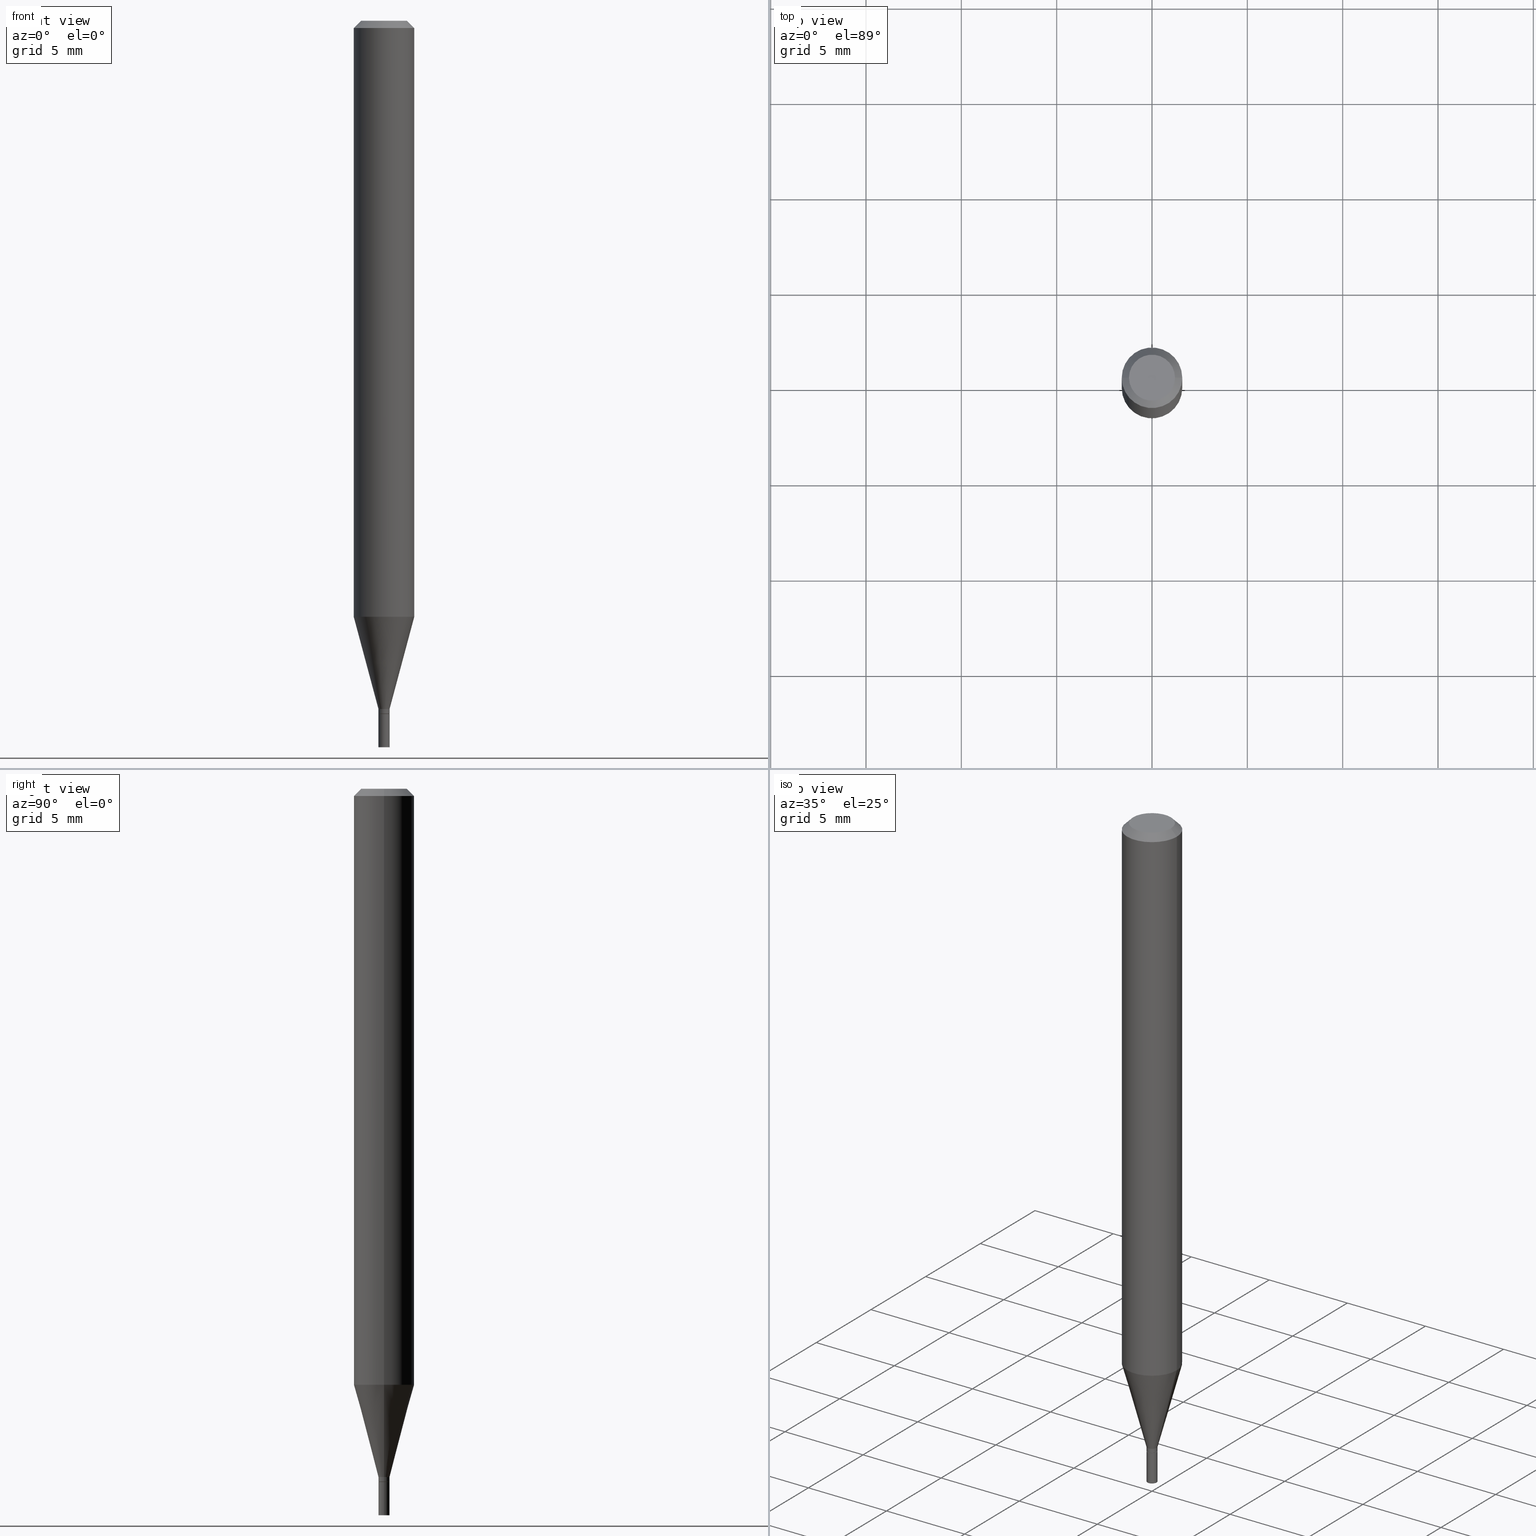
[diagram: canonical four-view strip — front | top / right | iso, engineering-drawing reading convention]
A machine part, canonical four-view strip (front | top / right | iso — engineering-drawing reading convention). The complete STEP part file that produces these views, byte-faithful:
ISO-10303-21;
HEADER;
FILE_DESCRIPTION (( 'STEP AP203' ),
    '1' );
FILE_NAME ('02293.STEP',
    '2024-03-18T20:02:10',
    ( '' ),
    ( '' ),
    'SwSTEP 2.0',
    'SolidWorks 2023',
    '' );
FILE_SCHEMA (( 'CONFIG_CONTROL_DESIGN' ));
ENDSEC;

DATA;
#1 = AXIS2_PLACEMENT_3D ( 'NONE', #349, #158, #167 ) ;
#2 = DIRECTION ( 'NONE',  ( 1.000000000000000000, -6.982962677686244622E-15, 0.000000000000000000 ) ) ;
#3 = CARTESIAN_POINT ( 'NONE',  ( 3.009553868105685827E-29, -4.296845309233809826E-15, -1.230665408813987893 ) ) ;
#4 = VECTOR ( 'NONE', #362, 39.37007874015748143 ) ;
#5 = EDGE_LOOP ( 'NONE', ( #283, #289, #29, #328 ) ) ;
#6 = CARTESIAN_POINT ( 'NONE',  ( 3.499465861650930802E-29, -4.996309795884541218E-15, -1.431000000000000050 ) ) ;
#7 = ORIENTED_EDGE ( 'NONE', *, *, #429, .T. ) ;
#8 = LINE ( 'NONE', #223, #38 ) ;
#9 = DIRECTION ( 'NONE',  ( -2.445468806185136597E-29, 3.491481338843145583E-15, 1.000000000000000000 ) ) ;
#10 = DIRECTION ( 'NONE',  ( 1.000000000000000000, -6.982962677686267499E-15, 4.876176775795935793E-29 ) ) ;
#11 = DIRECTION ( 'NONE',  ( 1.000000000000000000, -6.982962677686254878E-15, 0.000000000000000000 ) ) ;
#12 = AXIS2_PLACEMENT_3D ( 'NONE', #454, #91, #276 ) ;
#13 = SECURITY_CLASSIFICATION ( '', '', #46 ) ;
#14 = APPROVAL_PERSON_ORGANIZATION ( #168, #409, #60 ) ;
#15 = PERSON_AND_ORGANIZATION ( #261, #173 ) ;
#16 = EDGE_CURVE ( 'NONE', #421, #183, #329, .T. ) ;
#17 = DIRECTION ( 'NONE',  ( -2.445468806185136597E-29, 3.491481338843145583E-15, 1.000000000000000000 ) ) ;
#18 = COORDINATED_UNIVERSAL_TIME_OFFSET ( 5, 0, .BEHIND. ) ;
#19 = DIRECTION ( 'NONE',  ( 2.445468806185136597E-29, -3.491481338843145583E-15, -1.000000000000000000 ) ) ;
#20 =( GEOMETRIC_REPRESENTATION_CONTEXT ( 3 ) GLOBAL_UNCERTAINTY_ASSIGNED_CONTEXT ( ( #49 ) ) GLOBAL_UNIT_ASSIGNED_CONTEXT ( ( #311, #315, #26 ) ) REPRESENTATION_CONTEXT ( 'NONE', 'WORKASPACE' ) );
#21 = COORDINATED_UNIVERSAL_TIME_OFFSET ( 5, 0, .BEHIND. ) ;
#22 = CALENDAR_DATE ( 2024, 18, 3 ) ;
#23 = CARTESIAN_POINT ( 'NONE',  ( 3.668203209277705088E-31, -5.237222008264718399E-17, -0.01499999999999999944 ) ) ;
#24 = LENGTH_MEASURE_WITH_UNIT ( LENGTH_MEASURE( 0.02539999999999999897 ), #161 );
#25 = DIRECTION ( 'NONE',  ( 1.000000000000000000, -6.982962677686244622E-15, 0.000000000000000000 ) ) ;
#26 =( NAMED_UNIT ( * ) SI_UNIT ( $, .STERADIAN. ) SOLID_ANGLE_UNIT ( ) );
#27 = CIRCLE ( 'NONE', #157, 0.01149999999999992001 ) ;
#28 = APPLICATION_PROTOCOL_DEFINITION ( 'international standard', 'config_control_design', 1994, #427 ) ;
#29 = ORIENTED_EDGE ( 'NONE', *, *, #78, .F. ) ;
#30 = CARTESIAN_POINT ( 'NONE',  ( 3.668203209277705088E-31, -5.237222008264718399E-17, -0.01499999999999999944 ) ) ;
#31 = DIRECTION ( 'NONE',  ( -2.445468806185136597E-29, 3.491481338843145583E-15, 1.000000000000000000 ) ) ;
#32 = DIRECTION ( 'NONE',  ( 1.000000000000000000, -6.982962677686265922E-15, 4.876176775795935793E-29 ) ) ;
#33 = LOCAL_TIME ( 16, 2, 10.00000000000000000, #93 ) ;
#34 = EDGE_LOOP ( 'NONE', ( #7, #297, #280, #300 ) ) ;
#35 = CARTESIAN_POINT ( 'NONE',  ( -0.01149999999999992001, -4.366219333633723973E-15, -1.421000000000000263 ) ) ;
#36 = CARTESIAN_POINT ( 'NONE',  ( 0.01149999999999999981, -5.317526079058111285E-15, -1.500000000000000222 ) ) ;
#37 = ORIENTED_EDGE ( 'NONE', *, *, #121, .T. ) ;
#38 = VECTOR ( 'NONE', #81, 39.37007874015748143 ) ;
#39 = CIRCLE ( 'NONE', #425, 0.04749999999999999362 ) ;
#40 = ORIENTED_EDGE ( 'NONE', *, *, #101, .T. ) ;
#41 = EDGE_CURVE ( 'NONE', #355, #109, #116, .T. ) ;
#42 = CARTESIAN_POINT ( 'NONE',  ( -0.01149999999999999981, -5.035053487462219287E-15, -1.500000000000000222 ) ) ;
#43 = ORIENTED_EDGE ( 'NONE', *, *, #232, .F. ) ;
#44 = CONICAL_SURFACE ( 'NONE', #201, 0.01149999999999992001, 0.2617993877991502960 ) ;
#45 = ORIENTED_EDGE ( 'NONE', *, *, #156, .F. ) ;
#46 = SECURITY_CLASSIFICATION_LEVEL ( 'unclassified' ) ;
#47 = EDGE_CURVE ( 'NONE', #65, #253, #8, .T. ) ;
#48 = CARTESIAN_POINT ( 'NONE',  ( 0.000000000000000000, 0.000000000000000000, 0.000000000000000000 ) ) ;
#49 = UNCERTAINTY_MEASURE_WITH_UNIT (LENGTH_MEASURE( 1.000000000000000082E-05 ), #311, 'distance_accuracy_value', 'NONE');
#50 = CARTESIAN_POINT ( 'NONE',  ( 3.499465861650930802E-29, -4.996309795884541218E-15, -1.431000000000000050 ) ) ;
#51 = PERSON_AND_ORGANIZATION ( #261, #173 ) ;
#52 = PERSON_AND_ORGANIZATION ( #261, #173 ) ;
#53 = AXIS2_PLACEMENT_3D ( 'NONE', #308, #448, #119 ) ;
#54 = DIRECTION ( 'NONE',  ( -0.2588190451025216277, 5.211531920934551831E-15, 0.9659258262890679791 ) ) ;
#55 = APPLICATION_CONTEXT ( 'configuration controlled 3d designs of mechanical parts and assemblies' ) ;
#56 = DIRECTION ( 'NONE',  ( 1.000000000000000000, -6.982962677686252511E-15, 0.000000000000000000 ) ) ;
#57 = DIRECTION ( 'NONE',  ( -2.445468806185136597E-29, 3.491481338843145583E-15, 1.000000000000000000 ) ) ;
#58 = DATE_AND_TIME ( #318, #33 ) ;
#59 = DIRECTION ( 'NONE',  ( -2.445468806185136597E-29, 3.491481338843145583E-15, 1.000000000000000000 ) ) ;
#60 = APPROVAL_ROLE ( '' ) ;
#61 = EDGE_LOOP ( 'NONE', ( #288, #240 ) ) ;
#62 = AXIS2_PLACEMENT_3D ( 'NONE', #153, #9, #164 ) ;
#63 = DIRECTION ( 'NONE',  ( 1.000000000000000000, -6.982962677686267499E-15, 4.852736867747366768E-29 ) ) ;
#64 = DIRECTION ( 'NONE',  ( -2.445468806185136597E-29, 3.491481338843145583E-15, 1.000000000000000000 ) ) ;
#65 = VERTEX_POINT ( 'NONE', #371 ) ;
#66 = AXIS2_PLACEMENT_3D ( 'NONE', #23, #162, #310 ) ;
#67 = LOCAL_TIME ( 16, 2, 10.00000000000000000, #18 ) ;
#68 = CARTESIAN_POINT ( 'NONE',  ( 0.04749999999999999362, -4.035134999187572707E-16, 2.926320210456084224E-16 ) ) ;
#69 = DIRECTION ( 'NONE',  ( 1.000000000000000000, -6.982962677686266711E-15, 4.876176775795935793E-29 ) ) ;
#70 = FACE_OUTER_BOUND ( 'NONE', #262, .T. ) ;
#71 = CARTESIAN_POINT ( 'NONE',  ( -7.156224791579416592E-45, 1.021719240628687565E-30, 2.926320210456058586E-16 ) ) ;
#72 = CARTESIAN_POINT ( 'NONE',  ( 0.06249999999999997918, -4.733280476589200707E-15, -1.230665408813987893 ) ) ;
#73 = CARTESIAN_POINT ( 'NONE',  ( 0.01149999999999999981, -8.030407079339207309E-17, 5.607603292165326057E-31 ) ) ;
#74 = CIRCLE ( 'NONE', #1, 0.01149999999999999981 ) ;
#75 = CYLINDRICAL_SURFACE ( 'NONE', #301, 0.01149999999999999981 ) ;
#76 = AXIS2_PLACEMENT_3D ( 'NONE', #6, #147, #2 ) ;
#77 = ORIENTED_EDGE ( 'NONE', *, *, #435, .T. ) ;
#78 = EDGE_CURVE ( 'NONE', #253, #317, #281, .T. ) ;
#79 = CARTESIAN_POINT ( 'NONE',  ( -0.06250000000000000000, 3.840629472727444916E-16, -0.01499999999999999944 ) ) ;
#80 = PERSON_AND_ORGANIZATION_ROLE ( 'classification_officer' ) ;
#81 = DIRECTION ( 'NONE',  ( 0.2588190451025216277, 1.565188264969619995E-15, 0.9659258262890679791 ) ) ;
#82 = EDGE_CURVE ( 'NONE', #317, #109, #379, .T. ) ;
#83 = AXIS2_PLACEMENT_3D ( 'NONE', #216, #133, #69 ) ;
#84 = CARTESIAN_POINT ( 'NONE',  ( 0.01149999999999992174, -8.030407079339151842E-17, 5.607603292165287521E-31 ) ) ;
#85 = CARTESIAN_POINT ( 'NONE',  ( 0.01100000000000000110, -5.073122385339090530E-15, -1.431000000000000050 ) ) ;
#86 = PERSON_AND_ORGANIZATION ( #261, #173 ) ;
#87 = LINE ( 'NONE', #84, #444 ) ;
#88 = EDGE_CURVE ( 'NONE', #319, #222, #459, .T. ) ;
#89 = LINE ( 'NONE', #235, #105 ) ;
#90 = EDGE_CURVE ( 'NONE', #225, #421, #247, .T. ) ;
#91 = DIRECTION ( 'NONE',  ( -2.445468806185136597E-29, 3.491481338843145583E-15, 1.000000000000000000 ) ) ;
#92 = AXIS2_PLACEMENT_3D ( 'NONE', #71, #332, #384 ) ;
#93 = COORDINATED_UNIVERSAL_TIME_OFFSET ( 5, 0, .BEHIND. ) ;
#94 = EDGE_LOOP ( 'NONE', ( #391, #131 ) ) ;
#95 = DIRECTION ( 'NONE',  ( 2.438088387897960049E-29, -3.491481338843145188E-15, -1.000000000000000000 ) ) ;
#96 = DATE_AND_TIME ( #279, #210 ) ;
#97 = EDGE_CURVE ( 'NONE', #434, #207, #416, .T. ) ;
#98 = ORIENTED_EDGE ( 'NONE', *, *, #101, .F. ) ;
#99 = AXIS2_PLACEMENT_3D ( 'NONE', #227, #19, #457 ) ;
#100 = ORIENTED_EDGE ( 'NONE', *, *, #461, .F. ) ;
#101 = EDGE_CURVE ( 'NONE', #253, #363, #414, .T. ) ;
#102 = CC_DESIGN_PERSON_AND_ORGANIZATION_ASSIGNMENT ( #52, #193, ( #185 ) ) ;
#103 = DIRECTION ( 'NONE',  ( -2.445468806185136597E-29, 3.491481338843145583E-15, 1.000000000000000000 ) ) ;
#104 = CIRCLE ( 'NONE', #53, 0.01100000000000000110 ) ;
#105 = VECTOR ( 'NONE', #54, 39.37007874015748143 ) ;
#106 = PLANE ( 'NONE',  #113 ) ;
#107 = DIRECTION ( 'NONE',  ( 0.7071067811865405783, -7.319954787623230802E-15, -0.7071067811865542341 ) ) ;
#108 = CARTESIAN_POINT ( 'NONE',  ( -0.01149999999999999981, -5.035053487462219287E-15, -1.431000000000000050 ) ) ;
#109 = VERTEX_POINT ( 'NONE', #419 ) ;
#110 = EDGE_CURVE ( 'NONE', #109, #363, #314, .T. ) ;
#111 = EDGE_LOOP ( 'NONE', ( #77, #282, #458, #200 ) ) ;
#112 = CIRCLE ( 'NONE', #401, 0.01149999999999992348 ) ;
#113 = AXIS2_PLACEMENT_3D ( 'NONE', #291, #438, #375 ) ;
#114 = APPROVAL_DATE_TIME ( #96, #409 ) ;
#115 = CC_DESIGN_PERSON_AND_ORGANIZATION_ASSIGNMENT ( #273, #126, ( #170 ) ) ;
#116 = LINE ( 'NONE', #79, #424 ) ;
#117 = AXIS2_PLACEMENT_3D ( 'NONE', #187, #336, #378 ) ;
#118 = CIRCLE ( 'NONE', #344, 0.06250000000000000000 ) ;
#119 = DIRECTION ( 'NONE',  ( 1.000000000000000000, -6.982962677686244622E-15, 0.000000000000000000 ) ) ;
#120 = EDGE_CURVE ( 'NONE', #249, #183, #410, .T. ) ;
#121 = EDGE_CURVE ( 'NONE', #183, #249, #74, .T. ) ;
#122 = CARTESIAN_POINT ( 'NONE',  ( 3.499465861650930802E-29, -4.996309795884541218E-15, -1.431000000000000050 ) ) ;
#123 = CARTESIAN_POINT ( 'NONE',  ( 3.316907271900976096E-16, 0.04749999999999999362, -1.952935307224647024E-17 ) ) ;
#124 = CIRCLE ( 'NONE', #392, 0.01149999999999992001 ) ;
#125 = DIRECTION ( 'NONE',  ( -1.000000000000000000, 6.982962677686265922E-15, -4.876176775795935793E-29 ) ) ;
#126 = PERSON_AND_ORGANIZATION_ROLE ( 'design_owner' ) ;
#127 = ORIENTED_EDGE ( 'NONE', *, *, #47, .T. ) ;
#128 = CARTESIAN_POINT ( 'NONE',  ( 0.06250000000000000000, -4.364351673553916694E-16, 3.047610484872459871E-30 ) ) ;
#129 = COORDINATED_UNIVERSAL_TIME_OFFSET ( 5, 0, .BEHIND. ) ;
#130 = VECTOR ( 'NONE', #415, 39.37007874015748143 ) ;
#131 = ORIENTED_EDGE ( 'NONE', *, *, #143, .F. ) ;
#132 = AXIS2_PLACEMENT_3D ( 'NONE', #260, #254, #268 ) ;
#133 = DIRECTION ( 'NONE',  ( -2.445468806185136597E-29, 3.491481338843145583E-15, 1.000000000000000000 ) ) ;
#134 = CARTESIAN_POINT ( 'NONE',  ( 8.030407079342705414E-17, 0.01149999999999500380, -1.431000000000000050 ) ) ;
#135 = LINE ( 'NONE', #208, #4 ) ;
#136 = PLANE ( 'NONE',  #264 ) ;
#137 = FACE_OUTER_BOUND ( 'NONE', #94, .T. ) ;
#138 = DIRECTION ( 'NONE',  ( -1.000000000000000000, 6.982962677686265922E-15, -4.876176775795935793E-29 ) ) ;
#139 = ORIENTED_EDGE ( 'NONE', *, *, #110, .F. ) ;
#140 = VECTOR ( 'NONE', #313, 39.37007874015748143 ) ;
#141 = CARTESIAN_POINT ( 'NONE',  ( -0.06249999999999997918, -3.852756099383747210E-15, -1.230665408813987893 ) ) ;
#142 = CONICAL_SURFACE ( 'NONE', #244, 0.01149999999999992001, 0.2617993877991502960 ) ;
#143 = EDGE_CURVE ( 'NONE', #215, #434, #104, .T. ) ;
#144 = ORIENTED_EDGE ( 'NONE', *, *, #398, .F. ) ;
#145 = EDGE_CURVE ( 'NONE', #225, #249, #348, .T. ) ;
#146 = DIRECTION ( 'NONE',  ( -2.445468806185136597E-29, 3.491481338843145583E-15, 1.000000000000000000 ) ) ;
#147 = DIRECTION ( 'NONE',  ( -2.445468806185136597E-29, 3.491481338843145583E-15, 1.000000000000000000 ) ) ;
#148 = ORIENTED_EDGE ( 'NONE', *, *, #398, .T. ) ;
#149 = CARTESIAN_POINT ( 'NONE',  ( 0.06250000000000000000, -4.888073874380388472E-16, -0.01499999999999999944 ) ) ;
#150 = FACE_OUTER_BOUND ( 'NONE', #418, .T. ) ;
#151 = LOCAL_TIME ( 16, 2, 10.00000000000000000, #343 ) ;
#152 = EDGE_CURVE ( 'NONE', #207, #65, #87, .T. ) ;
#153 = CARTESIAN_POINT ( 'NONE',  ( 3.498243127247838561E-29, -4.994564055215120503E-15, -1.430500000000000327 ) ) ;
#154 = DATE_TIME_ROLE ( 'classification_date' ) ;
#155 = FACE_OUTER_BOUND ( 'NONE', #397, .T. ) ;
#156 = EDGE_CURVE ( 'NONE', #319, #207, #112, .T. ) ;
#157 = AXIS2_PLACEMENT_3D ( 'NONE', #430, #389, #290 ) ;
#158 = DIRECTION ( 'NONE',  ( -2.445468806185136597E-29, 3.491481338843145583E-15, 1.000000000000000000 ) ) ;
#159 = ADVANCED_FACE ( 'NONE', ( #195 ), #346, .T. ) ;
#160 = DIRECTION ( 'NONE',  ( 1.000000000000000000, -6.982962677686266711E-15, 4.876176775795935793E-29 ) ) ;
#161 =( LENGTH_UNIT ( ) NAMED_UNIT ( * ) SI_UNIT ( $, .METRE. ) );
#162 = DIRECTION ( 'NONE',  ( 2.445468806185136597E-29, -3.491481338843145583E-15, -1.000000000000000000 ) ) ;
#163 = ORIENTED_EDGE ( 'NONE', *, *, #152, .T. ) ;
#164 = DIRECTION ( 'NONE',  ( 1.000000000000000000, -6.982962677686252511E-15, 0.000000000000000000 ) ) ;
#165 = CIRCLE ( 'NONE', #180, 0.06250000000000000000 ) ;
#166 = CC_DESIGN_APPROVAL ( #169, ( #13 ) ) ;
#167 = DIRECTION ( 'NONE',  ( 1.000000000000000000, -6.982962677686291165E-15, 0.000000000000000000 ) ) ;
#168 = PERSON_AND_ORGANIZATION ( #261, #173 ) ;
#169 = APPROVAL ( #228, 'UNSPECIFIED' ) ;
#170 = PRODUCT ( '02293', '02293', '', ( #456 ) ) ;
#171 = ORIENTED_EDGE ( 'NONE', *, *, #82, .T. ) ;
#172 = ORIENTED_EDGE ( 'NONE', *, *, #156, .T. ) ;
#173 = ORGANIZATION ( 'UNSPECIFIED', 'UNSPECIFIED', '' ) ;
#174 = ORIENTED_EDGE ( 'NONE', *, *, #466, .T. ) ;
#175 = ORIENTED_EDGE ( 'NONE', *, *, #232, .T. ) ;
#176 = DIRECTION ( 'NONE',  ( 1.000000000000000000, -6.982962677686266711E-15, 0.000000000000000000 ) ) ;
#177 = CLOSED_SHELL ( 'NONE', ( #239, #359, #366, #230 ) ) ;
#178 = CARTESIAN_POINT ( 'NONE',  ( -0.01100000000000000110, -4.915500867776819716E-15, -1.431000000000000050 ) ) ;
#179 = ADVANCED_FACE ( 'NONE', ( #340 ), #272, .T. ) ;
#180 = AXIS2_PLACEMENT_3D ( 'NONE', #3, #146, #213 ) ;
#181 = CARTESIAN_POINT ( 'NONE',  ( 0.06250000000000000000, -4.811533449433679005E-16, -0.01499999999999999944 ) ) ;
#182 = CIRCLE ( 'NONE', #447, 0.01149999999999999981 ) ;
#183 = VERTEX_POINT ( 'NONE', #450 ) ;
#184 = PLANE ( 'NONE',  #452 ) ;
#185 = PRODUCT_DEFINITION ( 'UNKNOWN', '', #211, #295 ) ;
#186 = VECTOR ( 'NONE', #334, 39.37007874015748143 ) ;
#187 = CARTESIAN_POINT ( 'NONE',  ( 3.009553868105685827E-29, -4.296845309233809826E-15, -1.230665408813987893 ) ) ;
#188 = APPROVAL_PERSON_ORGANIZATION ( #407, #169, #226 ) ;
#189 = DIMENSIONAL_EXPONENTS ( 1.000000000000000000, 0.000000000000000000, 0.000000000000000000, 0.000000000000000000, 0.000000000000000000, 0.000000000000000000, 0.000000000000000000 ) ;
#190 = DIRECTION ( 'NONE',  ( 1.000000000000000000, -6.982962677686266711E-15, 4.876176775795935232E-29 ) ) ;
#191 = ADVANCED_FACE ( 'NONE', ( #155 ), #327, .T. ) ;
#192 = CLOSED_SHELL ( 'NONE', ( #258, #400, #451, #383, #245, #238, #304, #179, #372, #445, #191, #159 ) ) ;
#193 = PERSON_AND_ORGANIZATION_ROLE ( 'creator' ) ;
#194 = CARTESIAN_POINT ( 'NONE',  ( -7.156224791579416592E-45, 1.021719240628687565E-30, 2.926320210456058586E-16 ) ) ;
#195 = FACE_OUTER_BOUND ( 'NONE', #197, .T. ) ;
#196 = APPROVAL_DATE_TIME ( #58, #345 ) ;
#197 = EDGE_LOOP ( 'NONE', ( #243, #172, #163, #144 ) ) ;
#198 = DIRECTION ( 'NONE',  ( 1.000000000000000000, -6.982962677686291165E-15, 0.000000000000000000 ) ) ;
#199 = AXIS2_PLACEMENT_3D ( 'NONE', #50, #59, #198 ) ;
#200 = ORIENTED_EDGE ( 'NONE', *, *, #16, .F. ) ;
#201 = AXIS2_PLACEMENT_3D ( 'NONE', #292, #440, #11 ) ;
#202 = FACE_OUTER_BOUND ( 'NONE', #34, .T. ) ;
#203 = ORIENTED_EDGE ( 'NONE', *, *, #88, .T. ) ;
#204 = ORIENTED_EDGE ( 'NONE', *, *, #298, .F. ) ;
#205 = CARTESIAN_POINT ( 'NONE',  ( -0.01149999999999992348, -4.912851640602709304E-15, -1.430500000000000327 ) ) ;
#206 = EDGE_CURVE ( 'NONE', #65, #222, #124, .T. ) ;
#207 = VERTEX_POINT ( 'NONE', #396 ) ;
#208 = CARTESIAN_POINT ( 'NONE',  ( -0.01100000000000000110, -4.918150094950930917E-15, -1.431000000000000050 ) ) ;
#209 = DIRECTION ( 'NONE',  ( -2.445468806185136597E-29, 3.491481338843145583E-15, 1.000000000000000000 ) ) ;
#210 = LOCAL_TIME ( 16, 2, 10.00000000000000000, #129 ) ;
#211 = PRODUCT_DEFINITION_FORMATION_WITH_SPECIFIED_SOURCE ( 'ANY', '', #170, .NOT_KNOWN. ) ;
#212 = DIRECTION ( 'NONE',  ( 1.000000000000000000, -6.982962677686244622E-15, 0.000000000000000000 ) ) ;
#213 = DIRECTION ( 'NONE',  ( 1.000000000000000000, -6.982962677686262766E-15, 0.000000000000000000 ) ) ;
#214 = ORIENTED_EDGE ( 'NONE', *, *, #206, .F. ) ;
#215 = VERTEX_POINT ( 'NONE', #178 ) ;
#216 = CARTESIAN_POINT ( 'NONE',  ( 0.000000000000000000, 0.000000000000000000, 0.000000000000000000 ) ) ;
#217 = FACE_OUTER_BOUND ( 'NONE', #277, .T. ) ;
#218 = ORIENTED_EDGE ( 'NONE', *, *, #120, .T. ) ;
#219 = DIRECTION ( 'NONE',  ( -0.7071067811865405783, 2.468850131082184880E-15, -0.7071067811865542341 ) ) ;
#220 = CARTESIAN_POINT ( 'NONE',  ( 0.000000000000000000, 0.000000000000000000, 0.000000000000000000 ) ) ;
#221 = DIRECTION ( 'NONE',  ( 1.000000000000000000, -6.982962677686254878E-15, 0.000000000000000000 ) ) ;
#222 = VERTEX_POINT ( 'NONE', #35 ) ;
#223 = CARTESIAN_POINT ( 'NONE',  ( 0.01149999999999992001, -5.041699053289501888E-15, -1.421000000000000263 ) ) ;
#224 = ORIENTED_EDGE ( 'NONE', *, *, #82, .F. ) ;
#225 = VERTEX_POINT ( 'NONE', #42 ) ;
#226 = APPROVAL_ROLE ( '' ) ;
#227 = CARTESIAN_POINT ( 'NONE',  ( 3.668203209277705088E-31, -5.237222008264718399E-17, -0.01499999999999999944 ) ) ;
#228 = APPROVAL_STATUS ( 'not_yet_approved' ) ;
#229 = DIRECTION ( 'NONE',  ( -2.445468806185136877E-29, 3.491481338843145188E-15, 1.000000000000000000 ) ) ;
#230 = ADVANCED_FACE ( 'NONE', ( #70 ), #184, .F. ) ;
#231 = SHAPE_DEFINITION_REPRESENTATION ( #390, #370 ) ;
#232 = EDGE_CURVE ( 'NONE', #317, #253, #165, .T. ) ;
#233 = CARTESIAN_POINT ( 'NONE',  ( 3.668203209277705088E-31, -5.237222008264718399E-17, -0.01499999999999999944 ) ) ;
#234 = APPROVAL_STATUS ( 'not_yet_approved' ) ;
#235 = CARTESIAN_POINT ( 'NONE',  ( -0.01149999999999992001, -4.879682567883699947E-15, -1.421000000000000263 ) ) ;
#236 = CIRCLE ( 'NONE', #92, 0.04749999999999999362 ) ;
#237 = CARTESIAN_POINT ( 'NONE',  ( 3.498243127247838561E-29, -4.994564055215120503E-15, -1.430500000000000327 ) ) ;
#238 = ADVANCED_FACE ( 'NONE', ( #296 ), #44, .T. ) ;
#239 = ADVANCED_FACE ( 'NONE', ( #286 ), #278, .T. ) ;
#240 = ORIENTED_EDGE ( 'NONE', *, *, #90, .F. ) ;
#241 = DATE_TIME_ROLE ( 'creation_date' ) ;
#242 = CYLINDRICAL_SURFACE ( 'NONE', #412, 0.06250000000000000000 ) ;
#243 = ORIENTED_EDGE ( 'NONE', *, *, #88, .F. ) ;
#244 = AXIS2_PLACEMENT_3D ( 'NONE', #422, #393, #248 ) ;
#245 = ADVANCED_FACE ( 'NONE', ( #361 ), #142, .T. ) ;
#246 = VERTEX_POINT ( 'NONE', #68 ) ;
#247 = CIRCLE ( 'NONE', #12, 0.01149999999999999981 ) ;
#248 = DIRECTION ( 'NONE',  ( 1.000000000000000000, -6.982962677686254878E-15, 0.000000000000000000 ) ) ;
#249 = VERTEX_POINT ( 'NONE', #108 ) ;
#250 = CC_DESIGN_DATE_AND_TIME_ASSIGNMENT ( #413, #154, ( #13 ) ) ;
#251 = MANIFOLD_SOLID_BREP ( 'Body-Move/Copy2[1]', #177 ) ;
#252 = DIRECTION ( 'NONE',  ( 1.000000000000000000, -6.982962677686267499E-15, 4.876176775795935793E-29 ) ) ;
#253 = VERTEX_POINT ( 'NONE', #72 ) ;
#254 = DIRECTION ( 'NONE',  ( 0.000000000000000000, 0.000000000000000000, 1.000000000000000000 ) ) ;
#255 = MANIFOLD_SOLID_BREP ( 'Body-Move/Copy2[2]', #192 ) ;
#256 = AXIS2_PLACEMENT_3D ( 'NONE', #233, #376, #411 ) ;
#257 = ORIENTED_EDGE ( 'NONE', *, *, #90, .T. ) ;
#258 = ADVANCED_FACE ( 'NONE', ( #217 ), #365, .T. ) ;
#259 = CONICAL_SURFACE ( 'NONE', #433, 0.01100000000000000110, 0.7853981633974718157 ) ;
#260 = CARTESIAN_POINT ( 'NONE',  ( 0.000000000000000000, 0.000000000000000000, 0.000000000000000000 ) ) ;
#261 = PERSON ( 'UNSPECIFIED', 'UNSPECIFIED', 'UNSPECIFIED', ('UNSPECIFIED'), ('UNSPECIFIED'), ('UNSPECIFIED') ) ;
#262 = EDGE_LOOP ( 'NONE', ( #37, #218 ) ) ;
#263 = CALENDAR_DATE ( 2024, 18, 3 ) ;
#264 = AXIS2_PLACEMENT_3D ( 'NONE', #123, #95, #125 ) ;
#265 = DIRECTION ( 'NONE',  ( -2.445468806185136597E-29, 3.491481338843145583E-15, 1.000000000000000000 ) ) ;
#266 = DIRECTION ( 'NONE',  ( -2.445468806185136877E-29, 3.491481338843145188E-15, 1.000000000000000000 ) ) ;
#267 = APPROVAL_DATE_TIME ( #270, #169 ) ;
#268 = DIRECTION ( 'NONE',  ( 1.000000000000000000, 0.000000000000000000, 0.000000000000000000 ) ) ;
#269 = CARTESIAN_POINT ( 'NONE',  ( -0.01149999999999999981, 8.171241461241151999E-17, -5.656775353793142476E-31 ) ) ;
#270 = DATE_AND_TIME ( #263, #67 ) ;
#271 = CARTESIAN_POINT ( 'NONE',  ( -0.01149999999999992174, 8.171241461241096533E-17, -5.656775353793103064E-31 ) ) ;
#272 = CONICAL_SURFACE ( 'NONE', #66, 0.06250000000000000000, 0.7853981633974386201 ) ;
#273 = PERSON_AND_ORGANIZATION ( #261, #173 ) ;
#274 = LOCAL_TIME ( 16, 2, 10.00000000000000000, #21 ) ;
#275 = ORIENTED_EDGE ( 'NONE', *, *, #406, .T. ) ;
#276 = DIRECTION ( 'NONE',  ( 1.000000000000000000, -6.982962677686291165E-15, 0.000000000000000000 ) ) ;
#277 = EDGE_LOOP ( 'NONE', ( #275, #203, #214, #333 ) ) ;
#278 = CYLINDRICAL_SURFACE ( 'NONE', #351, 0.01149999999999999981 ) ;
#279 = CALENDAR_DATE ( 2024, 18, 3 ) ;
#280 = ORIENTED_EDGE ( 'NONE', *, *, #406, .F. ) ;
#281 = CIRCLE ( 'NONE', #117, 0.06250000000000000000 ) ;
#282 = ORIENTED_EDGE ( 'NONE', *, *, #145, .T. ) ;
#283 = ORIENTED_EDGE ( 'NONE', *, *, #206, .T. ) ;
#284 = CARTESIAN_POINT ( 'NONE',  ( 3.576687321579069994E-29, -5.368277968210015545E-15, -1.500000000000000222 ) ) ;
#285 = CARTESIAN_POINT ( 'NONE',  ( -0.04749999999999999362, 3.578768372314215929E-16, 2.926320210456034427E-16 ) ) ;
#286 = FACE_OUTER_BOUND ( 'NONE', #111, .T. ) ;
#287 = ORIENTED_EDGE ( 'NONE', *, *, #145, .F. ) ;
#288 = ORIENTED_EDGE ( 'NONE', *, *, #435, .F. ) ;
#289 = ORIENTED_EDGE ( 'NONE', *, *, #461, .T. ) ;
#290 = DIRECTION ( 'NONE',  ( 1.000000000000000000, -6.982962677686254878E-15, 0.000000000000000000 ) ) ;
#291 = CARTESIAN_POINT ( 'NONE',  ( 3.499465861650930802E-29, -4.996309795884541218E-15, -1.431000000000000050 ) ) ;
#292 = CARTESIAN_POINT ( 'NONE',  ( 3.475011173589079817E-29, -4.961394982496111147E-15, -1.421000000000000263 ) ) ;
#293 = ORIENTED_EDGE ( 'NONE', *, *, #41, .F. ) ;
#294 = APPLICATION_PROTOCOL_DEFINITION ( 'international standard', 'config_control_design', 1994, #55 ) ;
#295 = DESIGN_CONTEXT ( 'detailed design', #427, 'design' ) ;
#296 = FACE_OUTER_BOUND ( 'NONE', #353, .T. ) ;
#297 = ORIENTED_EDGE ( 'NONE', *, *, #303, .T. ) ;
#298 = EDGE_CURVE ( 'NONE', #363, #109, #118, .T. ) ;
#299 = VECTOR ( 'NONE', #342, 39.37007874015748143 ) ;
#300 = ORIENTED_EDGE ( 'NONE', *, *, #97, .F. ) ;
#301 = AXIS2_PLACEMENT_3D ( 'NONE', #220, #368, #10 ) ;
#302 = PERSON_AND_ORGANIZATION ( #261, #173 ) ;
#303 = EDGE_CURVE ( 'NONE', #215, #319, #135, .T. ) ;
#304 = ADVANCED_FACE ( 'NONE', ( #399 ), #395, .T. ) ;
#305 = CARTESIAN_POINT ( 'NONE',  ( 3.475011173589079817E-29, -4.961394982496111147E-15, -1.421000000000000263 ) ) ;
#306 = CARTESIAN_POINT ( 'NONE',  ( 0.000000000000000000, 0.000000000000000000, 0.000000000000000000 ) ) ;
#307 = CONICAL_SURFACE ( 'NONE', #99, 0.06250000000000000000, 0.7853981633974386201 ) ;
#308 = CARTESIAN_POINT ( 'NONE',  ( 3.499465861650930802E-29, -4.996309795884541218E-15, -1.431000000000000050 ) ) ;
#309 = DATE_AND_TIME ( #22, #151 ) ;
#310 = DIRECTION ( 'NONE',  ( -1.000000000000000000, 6.982962677686266711E-15, 0.000000000000000000 ) ) ;
#311 =( CONVERSION_BASED_UNIT ( 'INCH', #24 ) LENGTH_UNIT ( ) NAMED_UNIT ( #189 ) );
#312 = ORIENTED_EDGE ( 'NONE', *, *, #428, .F. ) ;
#313 = DIRECTION ( 'NONE',  ( -2.445468806185136877E-29, 3.491481338843145188E-15, 1.000000000000000000 ) ) ;
#314 = CIRCLE ( 'NONE', #256, 0.06250000000000000000 ) ;
#315 =( NAMED_UNIT ( * ) PLANE_ANGLE_UNIT ( ) SI_UNIT ( $, .RADIAN. ) );
#316 = AXIS2_PLACEMENT_3D ( 'NONE', #443, #265, #404 ) ;
#317 = VERTEX_POINT ( 'NONE', #141 ) ;
#318 = CALENDAR_DATE ( 2024, 18, 3 ) ;
#319 = VERTEX_POINT ( 'NONE', #205 ) ;
#320 = ORIENTED_EDGE ( 'NONE', *, *, #303, .F. ) ;
#321 = VECTOR ( 'NONE', #266, 39.37007874015748143 ) ;
#322 = ORIENTED_EDGE ( 'NONE', *, *, #110, .T. ) ;
#323 = DIRECTION ( 'NONE',  ( -2.445468806185136597E-29, 3.491481338843145583E-15, 1.000000000000000000 ) ) ;
#324 = ORIENTED_EDGE ( 'NONE', *, *, #298, .T. ) ;
#325 = CC_DESIGN_PERSON_AND_ORGANIZATION_ASSIGNMENT ( #302, #442, ( #211 ) ) ;
#326 = ORIENTED_EDGE ( 'NONE', *, *, #41, .T. ) ;
#327 = CONICAL_SURFACE ( 'NONE', #432, 0.01100000000000000110, 0.7853981633974718157 ) ;
#328 = ORIENTED_EDGE ( 'NONE', *, *, #47, .F. ) ;
#329 = LINE ( 'NONE', #73, #186 ) ;
#330 = FACE_OUTER_BOUND ( 'NONE', #61, .T. ) ;
#331 = CARTESIAN_POINT ( 'NONE',  ( 3.668203209277704895E-29, -5.237222008264718177E-15, -1.500000000000000222 ) ) ;
#332 = DIRECTION ( 'NONE',  ( -2.445468806185136597E-29, 3.491481338843145583E-15, 1.000000000000000000 ) ) ;
#333 = ORIENTED_EDGE ( 'NONE', *, *, #152, .F. ) ;
#334 = DIRECTION ( 'NONE',  ( -2.445468806185136877E-29, 3.491481338843145188E-15, 1.000000000000000000 ) ) ;
#335 = DIRECTION ( 'NONE',  ( 2.438088387897960049E-29, -3.491481338843145188E-15, -1.000000000000000000 ) ) ;
#336 = DIRECTION ( 'NONE',  ( -2.445468806185136597E-29, 3.491481338843145583E-15, 1.000000000000000000 ) ) ;
#337 = CC_DESIGN_SECURITY_CLASSIFICATION ( #13, ( #211 ) ) ;
#338 = CALENDAR_DATE ( 2024, 18, 3 ) ;
#339 = CC_DESIGN_PERSON_AND_ORGANIZATION_ASSIGNMENT ( #51, #80, ( #13 ) ) ;
#340 = FACE_OUTER_BOUND ( 'NONE', #402, .T. ) ;
#341 = VECTOR ( 'NONE', #381, 39.37007874015748143 ) ;
#342 = DIRECTION ( 'NONE',  ( 0.7071067811865642261, -2.468850131082431399E-15, 0.7071067811865309194 ) ) ;
#343 = COORDINATED_UNIVERSAL_TIME_OFFSET ( 5, 0, .BEHIND. ) ;
#344 = AXIS2_PLACEMENT_3D ( 'NONE', #30, #64, #176 ) ;
#345 = APPROVAL ( #234, 'UNSPECIFIED' ) ;
#346 = CYLINDRICAL_SURFACE ( 'NONE', #385, 0.01149999999999992174 ) ;
#347 = EDGE_CURVE ( 'NONE', #246, #363, #436, .T. ) ;
#348 = LINE ( 'NONE', #269, #130 ) ;
#349 = CARTESIAN_POINT ( 'NONE',  ( 3.499465861650930802E-29, -4.996309795884541218E-15, -1.431000000000000050 ) ) ;
#350 = FACE_OUTER_BOUND ( 'NONE', #426, .T. ) ;
#351 = AXIS2_PLACEMENT_3D ( 'NONE', #439, #103, #252 ) ;
#352 = ORIENTED_EDGE ( 'NONE', *, *, #466, .F. ) ;
#353 = EDGE_LOOP ( 'NONE', ( #100, #148, #127, #43 ) ) ;
#354 = PLANE ( 'NONE',  #367 ) ;
#355 = VERTEX_POINT ( 'NONE', #285 ) ;
#356 = CARTESIAN_POINT ( 'NONE',  ( 3.499465861650930802E-29, -4.996309795884541218E-15, -1.431000000000000050 ) ) ;
#357 = DIRECTION ( 'NONE',  ( -2.438088387897960049E-29, 3.491481338843145188E-15, 1.000000000000000000 ) ) ;
#358 = EDGE_LOOP ( 'NONE', ( #405, #174 ) ) ;
#359 = ADVANCED_FACE ( 'NONE', ( #330 ), #354, .F. ) ;
#360 = CC_DESIGN_APPROVAL ( #345, ( #185 ) ) ;
#361 = FACE_OUTER_BOUND ( 'NONE', #5, .T. ) ;
#362 = DIRECTION ( 'NONE',  ( -0.7071067811865642261, 7.493145998870414114E-15, 0.7071067811865309194 ) ) ;
#363 = VERTEX_POINT ( 'NONE', #149 ) ;
#364 = CC_DESIGN_DATE_AND_TIME_ASSIGNMENT ( #309, #241, ( #185 ) ) ;
#365 = CYLINDRICAL_SURFACE ( 'NONE', #316, 0.01149999999999992174 ) ;
#366 = ADVANCED_FACE ( 'NONE', ( #150 ), #75, .T. ) ;
#367 = AXIS2_PLACEMENT_3D ( 'NONE', #284, #357, #32 ) ;
#368 = DIRECTION ( 'NONE',  ( -2.445468806185136597E-29, 3.491481338843145583E-15, 1.000000000000000000 ) ) ;
#369 = ORIENTED_EDGE ( 'NONE', *, *, #347, .T. ) ;
#370 = ADVANCED_BREP_SHAPE_REPRESENTATION ( '02293', ( #251, #255, #132 ), #20 ) ;
#371 = CARTESIAN_POINT ( 'NONE',  ( 0.01149999999999992001, -5.041699053289501888E-15, -1.421000000000000263 ) ) ;
#372 = ADVANCED_FACE ( 'NONE', ( #437 ), #136, .F. ) ;
#373 = DIRECTION ( 'NONE',  ( -2.445468806185136597E-29, 3.491481338843145583E-15, 1.000000000000000000 ) ) ;
#374 = PRODUCT_RELATED_PRODUCT_CATEGORY ( 'detail', '', ( #170 ) ) ;
#375 = DIRECTION ( 'NONE',  ( 1.000000000000000000, -6.982962677686265922E-15, 4.876176775795935793E-29 ) ) ;
#376 = DIRECTION ( 'NONE',  ( -2.445468806185136597E-29, 3.491481338843145583E-15, 1.000000000000000000 ) ) ;
#377 = DIRECTION ( 'NONE',  ( -2.445468806185136597E-29, 3.491481338843145583E-15, 1.000000000000000000 ) ) ;
#378 = DIRECTION ( 'NONE',  ( 1.000000000000000000, -6.982962677686262766E-15, 0.000000000000000000 ) ) ;
#379 = LINE ( 'NONE', #446, #140 ) ;
#380 = APPROVAL_ROLE ( '' ) ;
#381 = DIRECTION ( 'NONE',  ( -2.445468806185136877E-29, 3.491481338843145188E-15, 1.000000000000000000 ) ) ;
#382 = APPROVAL_STATUS ( 'not_yet_approved' ) ;
#383 = ADVANCED_FACE ( 'NONE', ( #350 ), #242, .T. ) ;
#384 = DIRECTION ( 'NONE',  ( 1.000000000000000000, -6.982962677686267499E-15, 4.852736867747366768E-29 ) ) ;
#385 = AXIS2_PLACEMENT_3D ( 'NONE', #48, #373, #190 ) ;
#386 = DIRECTION ( 'NONE',  ( -2.445468806185136597E-29, 3.491481338843145583E-15, 1.000000000000000000 ) ) ;
#387 = CIRCLE ( 'NONE', #62, 0.01149999999999992348 ) ;
#388 = EDGE_LOOP ( 'NONE', ( #352, #369, #324, #293 ) ) ;
#389 = DIRECTION ( 'NONE',  ( -2.445468806185136597E-29, 3.491481338843145583E-15, 1.000000000000000000 ) ) ;
#390 = PRODUCT_DEFINITION_SHAPE ( 'NONE', 'NONE',  #185 ) ;
#391 = ORIENTED_EDGE ( 'NONE', *, *, #429, .F. ) ;
#392 = AXIS2_PLACEMENT_3D ( 'NONE', #305, #209, #221 ) ;
#393 = DIRECTION ( 'NONE',  ( -2.445468806185136597E-29, 3.491481338843145583E-15, 1.000000000000000000 ) ) ;
#394 = ORIENTED_EDGE ( 'NONE', *, *, #143, .T. ) ;
#395 = CYLINDRICAL_SURFACE ( 'NONE', #83, 0.06250000000000000000 ) ;
#396 = CARTESIAN_POINT ( 'NONE',  ( 0.01149999999999992348, -5.074868126008511245E-15, -1.430500000000000327 ) ) ;
#397 = EDGE_LOOP ( 'NONE', ( #320, #394, #463, #45 ) ) ;
#398 = EDGE_CURVE ( 'NONE', #222, #65, #27, .T. ) ;
#399 = FACE_OUTER_BOUND ( 'NONE', #423, .T. ) ;
#400 = ADVANCED_FACE ( 'NONE', ( #202 ), #259, .T. ) ;
#401 = AXIS2_PLACEMENT_3D ( 'NONE', #237, #17, #56 ) ;
#402 = EDGE_LOOP ( 'NONE', ( #464, #312, #326, #322 ) ) ;
#403 = VECTOR ( 'NONE', #107, 39.37007874015748854 ) ;
#404 = DIRECTION ( 'NONE',  ( 1.000000000000000000, -6.982962677686266711E-15, 4.876176775795935232E-29 ) ) ;
#405 = ORIENTED_EDGE ( 'NONE', *, *, #428, .T. ) ;
#406 = EDGE_CURVE ( 'NONE', #207, #319, #387, .T. ) ;
#407 = PERSON_AND_ORGANIZATION ( #261, #173 ) ;
#408 = FACE_OUTER_BOUND ( 'NONE', #388, .T. ) ;
#409 = APPROVAL ( #382, 'UNSPECIFIED' ) ;
#410 = CIRCLE ( 'NONE', #199, 0.01149999999999999981 ) ;
#411 = DIRECTION ( 'NONE',  ( 1.000000000000000000, -6.982962677686266711E-15, 0.000000000000000000 ) ) ;
#412 = AXIS2_PLACEMENT_3D ( 'NONE', #306, #377, #160 ) ;
#413 = DATE_AND_TIME ( #338, #274 ) ;
#414 = LINE ( 'NONE', #128, #341 ) ;
#415 = DIRECTION ( 'NONE',  ( -2.445468806185136877E-29, 3.491481338843145188E-15, 1.000000000000000000 ) ) ;
#416 = LINE ( 'NONE', #85, #299 ) ;
#417 = CIRCLE ( 'NONE', #76, 0.01100000000000000110 ) ;
#418 = EDGE_LOOP ( 'NONE', ( #287, #257, #460, #453 ) ) ;
#419 = CARTESIAN_POINT ( 'NONE',  ( -0.06250000000000000000, -1.730519554808165837E-15, -0.01499999999999999944 ) ) ;
#420 = CC_DESIGN_PERSON_AND_ORGANIZATION_ASSIGNMENT ( #15, #449, ( #211 ) ) ;
#421 = VERTEX_POINT ( 'NONE', #36 ) ;
#422 = CARTESIAN_POINT ( 'NONE',  ( 3.475011173589079817E-29, -4.961394982496111147E-15, -1.421000000000000263 ) ) ;
#423 = EDGE_LOOP ( 'NONE', ( #224, #175, #40, #139 ) ) ;
#424 = VECTOR ( 'NONE', #219, 39.37007874015748854 ) ;
#425 = AXIS2_PLACEMENT_3D ( 'NONE', #194, #386, #63 ) ;
#426 = EDGE_LOOP ( 'NONE', ( #465, #171, #204, #98 ) ) ;
#427 = APPLICATION_CONTEXT ( 'configuration controlled 3d designs of mechanical parts and assemblies' ) ;
#428 = EDGE_CURVE ( 'NONE', #355, #246, #236, .T. ) ;
#429 = EDGE_CURVE ( 'NONE', #434, #215, #417, .T. ) ;
#430 = CARTESIAN_POINT ( 'NONE',  ( 3.475011173589079817E-29, -4.961394982496111147E-15, -1.421000000000000263 ) ) ;
#431 = DIRECTION ( 'NONE',  ( 1.000000000000000000, -6.982962677686291165E-15, 0.000000000000000000 ) ) ;
#432 = AXIS2_PLACEMENT_3D ( 'NONE', #122, #57, #25 ) ;
#433 = AXIS2_PLACEMENT_3D ( 'NONE', #356, #31, #212 ) ;
#434 = VERTEX_POINT ( 'NONE', #462 ) ;
#435 = EDGE_CURVE ( 'NONE', #421, #225, #182, .T. ) ;
#436 = LINE ( 'NONE', #181, #403 ) ;
#437 = FACE_OUTER_BOUND ( 'NONE', #358, .T. ) ;
#438 = DIRECTION ( 'NONE',  ( -2.438088387897960049E-29, 3.491481338843145188E-15, 1.000000000000000000 ) ) ;
#439 = CARTESIAN_POINT ( 'NONE',  ( 0.000000000000000000, 0.000000000000000000, 0.000000000000000000 ) ) ;
#440 = DIRECTION ( 'NONE',  ( -2.445468806185136597E-29, 3.491481338843145583E-15, 1.000000000000000000 ) ) ;
#441 = APPROVAL_PERSON_ORGANIZATION ( #86, #345, #380 ) ;
#442 = PERSON_AND_ORGANIZATION_ROLE ( 'creator' ) ;
#443 = CARTESIAN_POINT ( 'NONE',  ( 0.000000000000000000, 0.000000000000000000, 0.000000000000000000 ) ) ;
#444 = VECTOR ( 'NONE', #229, 39.37007874015748143 ) ;
#445 = ADVANCED_FACE ( 'NONE', ( #137 ), #106, .F. ) ;
#446 = CARTESIAN_POINT ( 'NONE',  ( -0.06250000000000000000, 4.440892098500626162E-16, -3.074334431409316114E-30 ) ) ;
#447 = AXIS2_PLACEMENT_3D ( 'NONE', #331, #323, #431 ) ;
#448 = DIRECTION ( 'NONE',  ( -2.445468806185136597E-29, 3.491481338843145583E-15, 1.000000000000000000 ) ) ;
#449 = PERSON_AND_ORGANIZATION_ROLE ( 'design_supplier' ) ;
#450 = CARTESIAN_POINT ( 'NONE',  ( 0.01149999999999999981, -5.076613866677933538E-15, -1.431000000000000050 ) ) ;
#451 = ADVANCED_FACE ( 'NONE', ( #408 ), #307, .T. ) ;
#452 = AXIS2_PLACEMENT_3D ( 'NONE', #134, #335, #138 ) ;
#453 = ORIENTED_EDGE ( 'NONE', *, *, #120, .F. ) ;
#454 = CARTESIAN_POINT ( 'NONE',  ( 3.668203209277704895E-29, -5.237222008264718177E-15, -1.500000000000000222 ) ) ;
#455 = CC_DESIGN_APPROVAL ( #409, ( #211 ) ) ;
#456 = MECHANICAL_CONTEXT ( 'NONE', #55, 'mechanical' ) ;
#457 = DIRECTION ( 'NONE',  ( -1.000000000000000000, 6.982962677686266711E-15, 0.000000000000000000 ) ) ;
#458 = ORIENTED_EDGE ( 'NONE', *, *, #121, .F. ) ;
#459 = LINE ( 'NONE', #271, #321 ) ;
#460 = ORIENTED_EDGE ( 'NONE', *, *, #16, .T. ) ;
#461 = EDGE_CURVE ( 'NONE', #222, #317, #89, .T. ) ;
#462 = CARTESIAN_POINT ( 'NONE',  ( 0.01100000000000000110, -5.073122385339090530E-15, -1.431000000000000050 ) ) ;
#463 = ORIENTED_EDGE ( 'NONE', *, *, #97, .T. ) ;
#464 = ORIENTED_EDGE ( 'NONE', *, *, #347, .F. ) ;
#465 = ORIENTED_EDGE ( 'NONE', *, *, #78, .T. ) ;
#466 = EDGE_CURVE ( 'NONE', #246, #355, #39, .T. ) ;
ENDSEC;
END-ISO-10303-21;
